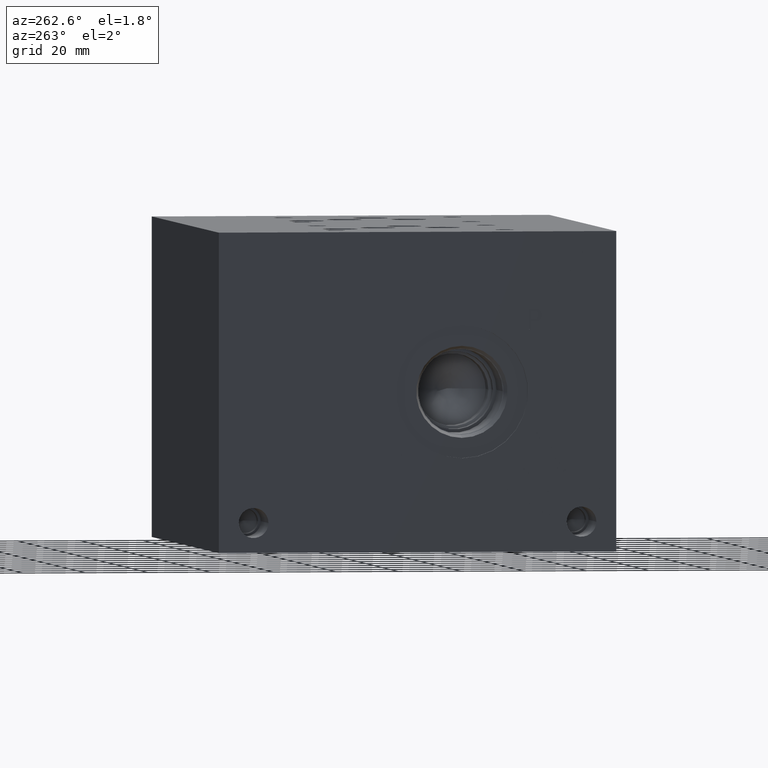
[diagram: clean part render]
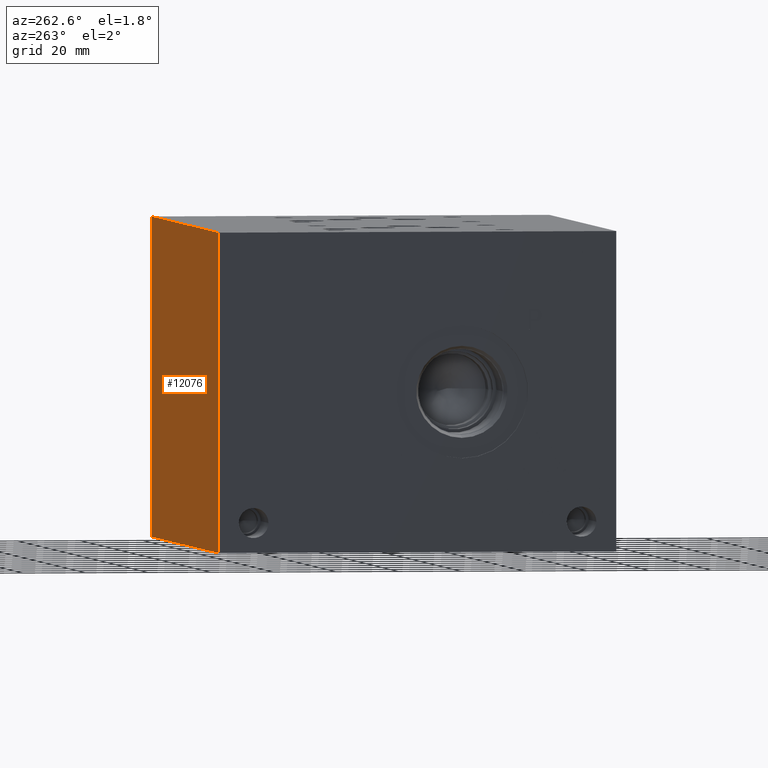
[diagram: same view with one face highlighted and labeled with its STEP entity id]
A machine part, auxiliary view. The second image highlights one B-rep face of the part: STEP entity #12076.
In plain terms, the highlighted planar face has unit normal (0, 1, 0).
Its self-contained STEP definition (entity closure, byte-faithful):
#1595=FACE_OUTER_BOUND('',#2290,.T.);
#2290=EDGE_LOOP('',(#10601,#10602,#10603,#10604));
#2374=LINE('',#15583,#3462);
#3398=LINE('',#20906,#4486);
#3399=LINE('',#20908,#4487);
#3400=LINE('',#20909,#4488);
#3462=VECTOR('',#12907,10.);
#4486=VECTOR('',#15311,10.);
#4487=VECTOR('',#15312,10.);
#4488=VECTOR('',#15313,10.);
#4539=VERTEX_POINT('',#15576);
#4542=VERTEX_POINT('',#15581);
#5639=VERTEX_POINT('',#20905);
#5640=VERTEX_POINT('',#20907);
#5716=EDGE_CURVE('',#4539,#4542,#2374,.T.);
#7311=EDGE_CURVE('',#5639,#4539,#3398,.T.);
#7312=EDGE_CURVE('',#5640,#4542,#3399,.T.);
#7313=EDGE_CURVE('',#5639,#5640,#3400,.T.);
#10601=ORIENTED_EDGE('',*,*,#7311,.T.);
#10602=ORIENTED_EDGE('',*,*,#5716,.T.);
#10603=ORIENTED_EDGE('',*,*,#7312,.F.);
#10604=ORIENTED_EDGE('',*,*,#7313,.F.);
#10998=PLANE('',#12803);
#12076=ADVANCED_FACE('',(#1595),#10998,.T.);
#12803=AXIS2_PLACEMENT_3D('',#20904,#15309,#15310);
#12907=DIRECTION('',(0.,0.,1.));
#15309=DIRECTION('center_axis',(0.,1.,0.));
#15310=DIRECTION('ref_axis',(-1.,0.,0.));
#15311=DIRECTION('',(-1.,0.,0.));
#15312=DIRECTION('',(-1.,0.,0.));
#15313=DIRECTION('',(0.,0.,1.));
#15576=CARTESIAN_POINT('',(0.,127.,0.));
#15581=CARTESIAN_POINT('',(0.,127.,101.6));
#15583=CARTESIAN_POINT('',(0.,127.,0.));
#20904=CARTESIAN_POINT('Origin',(165.1,127.,0.));
#20905=CARTESIAN_POINT('',(165.1,127.,0.));
#20906=CARTESIAN_POINT('',(165.1,127.,0.));
#20907=CARTESIAN_POINT('',(165.1,127.,101.6));
#20908=CARTESIAN_POINT('',(165.1,127.,101.6));
#20909=CARTESIAN_POINT('',(165.1,127.,0.));